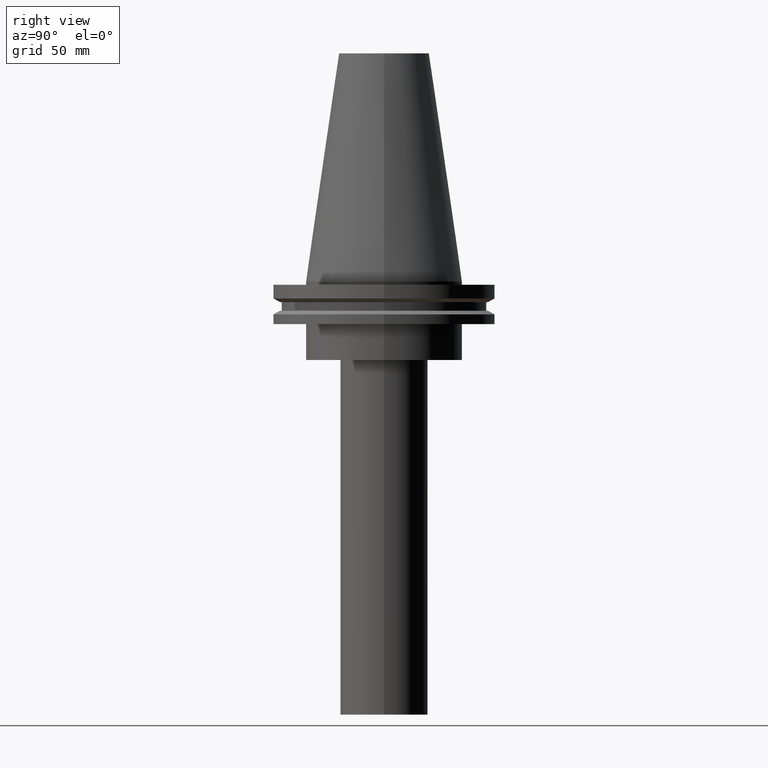
[diagram: clean part render]
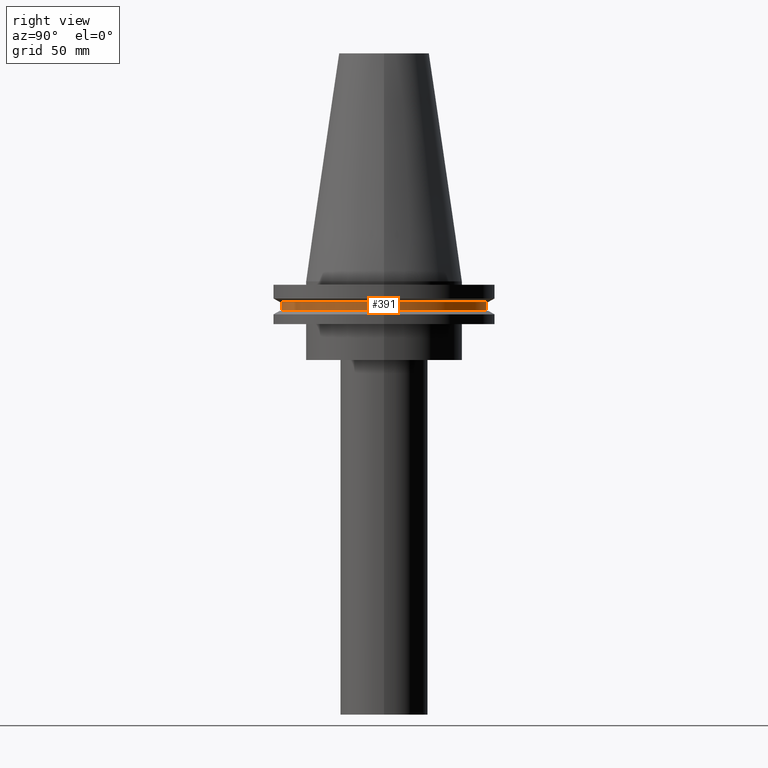
[diagram: same view with one face highlighted and labeled with its STEP entity id]
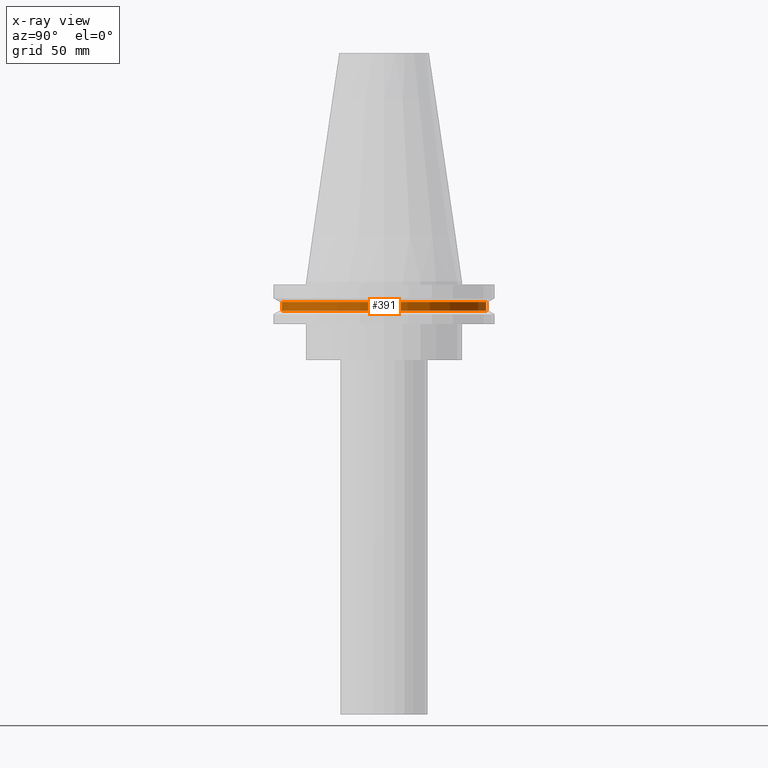
[diagram: x-ray of the same camera — body ghosted, the highlighted face saturated]
A machine part, right view. The second image highlights one B-rep face of the part: STEP entity #391.
The next image is the same camera in x-ray: the body ghosted, the highlighted face saturated — about 0% of this face is hidden behind the body in this view.
In plain terms, the highlighted cylindrical surface (bore or boss wall) has radius 45.645 mm, axis along (-0, -0, 1).
Its self-contained STEP definition (entity closure, byte-faithful):
#10 = AXIS2_PLACEMENT_3D ( 'NONE', #294, #330, #229 ) ;
#51 = DIRECTION ( 'NONE',  ( 1.000000000000000000, 0.000000000000000000, 0.000000000000000000 ) ) ;
#67 = ORIENTED_EDGE ( 'NONE', *, *, #385, .F. ) ;
#68 = DIRECTION ( 'NONE',  ( -0.000000000000000000, -0.000000000000000000, 1.000000000000000000 ) ) ;
#70 = CARTESIAN_POINT ( 'NONE',  ( 0.000000000000000000, 0.000000000000000000, -13.05499999999999794 ) ) ;
#106 = FACE_OUTER_BOUND ( 'NONE', #214, .T. ) ;
#120 = CIRCLE ( 'NONE', #133, 45.64500000000000313 ) ;
#133 = AXIS2_PLACEMENT_3D ( 'NONE', #266, #226, #51 ) ;
#142 = EDGE_CURVE ( 'NONE', #245, #245, #249, .T. ) ;
#155 = DIRECTION ( 'NONE',  ( 1.000000000000000000, 0.000000000000000000, 0.000000000000000000 ) ) ;
#166 = CYLINDRICAL_SURFACE ( 'NONE', #10, 45.64500000000000313 ) ;
#214 = EDGE_LOOP ( 'NONE', ( #300 ) ) ;
#226 = DIRECTION ( 'NONE',  ( -0.000000000000000000, -0.000000000000000000, 1.000000000000000000 ) ) ;
#229 = DIRECTION ( 'NONE',  ( 1.000000000000000000, 0.000000000000000000, 0.000000000000000000 ) ) ;
#232 = EDGE_LOOP ( 'NONE', ( #67 ) ) ;
#245 = VERTEX_POINT ( 'NONE', #311 ) ;
#249 = CIRCLE ( 'NONE', #323, 45.64500000000000313 ) ;
#266 = CARTESIAN_POINT ( 'NONE',  ( 0.000000000000000000, 0.000000000000000000, -9.204999999999991189 ) ) ;
#294 = CARTESIAN_POINT ( 'NONE',  ( 0.000000000000000000, 0.000000000000000000, 101.5999999999999943 ) ) ;
#300 = ORIENTED_EDGE ( 'NONE', *, *, #142, .T. ) ;
#311 = CARTESIAN_POINT ( 'NONE',  ( 45.64500000000000313, 0.000000000000000000, -13.05499999999999794 ) ) ;
#323 = AXIS2_PLACEMENT_3D ( 'NONE', #70, #68, #155 ) ;
#330 = DIRECTION ( 'NONE',  ( -0.000000000000000000, -0.000000000000000000, 1.000000000000000000 ) ) ;
#335 = CARTESIAN_POINT ( 'NONE',  ( 45.64500000000000313, 0.000000000000000000, -9.204999999999991189 ) ) ;
#356 = FACE_OUTER_BOUND ( 'NONE', #232, .T. ) ;
#372 = VERTEX_POINT ( 'NONE', #335 ) ;
#385 = EDGE_CURVE ( 'NONE', #372, #372, #120, .T. ) ;
#391 = ADVANCED_FACE ( 'NONE', ( #356, #106 ), #166, .T. ) ;